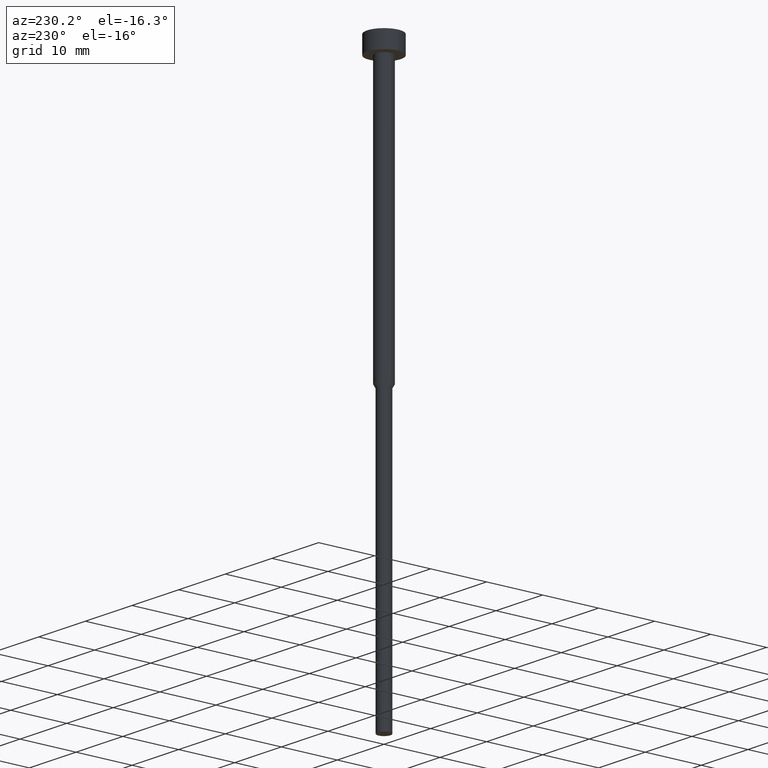
[diagram: clean part render]
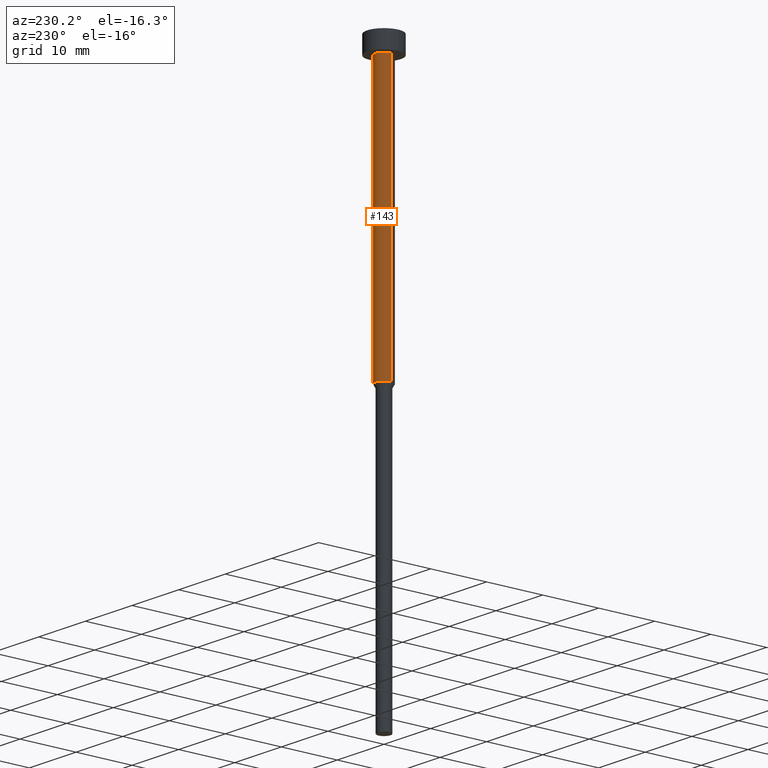
[diagram: same view with one face highlighted and labeled with its STEP entity id]
A machine part, auxiliary view. The second image highlights one B-rep face of the part: STEP entity #143.
In plain terms, the highlighted cylindrical surface (edge-blend (fillet) strip) has radius 1.5 mm, axis along (-0, -0, 1).
Its self-contained STEP definition (entity closure, byte-faithful):
#10 = AXIS2_PLACEMENT_3D ( 'NONE', #54, #140, #324 ) ;
#16 = DIRECTION ( 'NONE',  ( -0.000000000000000000, -0.000000000000000000, 1.000000000000000000 ) ) ;
#29 = CIRCLE ( 'NONE', #300, 1.500000000000000000 ) ;
#35 = VERTEX_POINT ( 'NONE', #238 ) ;
#36 = EDGE_CURVE ( 'NONE', #151, #281, #153, .T. ) ;
#41 = ORIENTED_EDGE ( 'NONE', *, *, #206, .T. ) ;
#54 = CARTESIAN_POINT ( 'NONE',  ( 0.000000000000000000, 0.000000000000000000, -50.00000000000000000 ) ) ;
#57 = AXIS2_PLACEMENT_3D ( 'NONE', #154, #16, #72 ) ;
#62 = ORIENTED_EDGE ( 'NONE', *, *, #36, .T. ) ;
#72 = DIRECTION ( 'NONE',  ( 1.000000000000000000, 0.000000000000000000, 0.000000000000000000 ) ) ;
#73 = CARTESIAN_POINT ( 'NONE',  ( 1.500000000000000000, 0.000000000000000000, -3.000000000000000888 ) ) ;
#74 = DIRECTION ( 'NONE',  ( 1.000000000000000000, 0.000000000000000000, 0.000000000000000000 ) ) ;
#92 = CARTESIAN_POINT ( 'NONE',  ( 1.500000000000000000, 0.000000000000000000, 0.000000000000000000 ) ) ;
#116 = DIRECTION ( 'NONE',  ( -0.000000000000000000, -0.000000000000000000, 1.000000000000000000 ) ) ;
#122 = CARTESIAN_POINT ( 'NONE',  ( 1.500000000000000000, 0.000000000000000000, -50.00000000000000000 ) ) ;
#138 = LINE ( 'NONE', #241, #252 ) ;
#140 = DIRECTION ( 'NONE',  ( -0.000000000000000000, -0.000000000000000000, 1.000000000000000000 ) ) ;
#143 = ADVANCED_FACE ( 'NONE', ( #348 ), #256, .T. ) ;
#151 = VERTEX_POINT ( 'NONE', #122 ) ;
#153 = CIRCLE ( 'NONE', #10, 1.500000000000000000 ) ;
#154 = CARTESIAN_POINT ( 'NONE',  ( 0.000000000000000000, 0.000000000000000000, 0.000000000000000000 ) ) ;
#171 = DIRECTION ( 'NONE',  ( -0.000000000000000000, -0.000000000000000000, 1.000000000000000000 ) ) ;
#180 = ORIENTED_EDGE ( 'NONE', *, *, #295, .F. ) ;
#192 = ORIENTED_EDGE ( 'NONE', *, *, #307, .F. ) ;
#206 = EDGE_CURVE ( 'NONE', #281, #35, #138, .T. ) ;
#209 = CARTESIAN_POINT ( 'NONE',  ( 0.000000000000000000, 0.000000000000000000, -3.000000000000000888 ) ) ;
#224 = EDGE_LOOP ( 'NONE', ( #62, #41, #180, #192 ) ) ;
#228 = VECTOR ( 'NONE', #171, 1000.000000000000000 ) ;
#233 = VERTEX_POINT ( 'NONE', #73 ) ;
#238 = CARTESIAN_POINT ( 'NONE',  ( -1.500000000000000000, 1.836970198721029934E-16, -3.000000000000000888 ) ) ;
#241 = CARTESIAN_POINT ( 'NONE',  ( -1.500000000000000000, 1.836970198721029934E-16, 0.000000000000000000 ) ) ;
#252 = VECTOR ( 'NONE', #116, 1000.000000000000000 ) ;
#256 = CYLINDRICAL_SURFACE ( 'NONE', #57, 1.500000000000000000 ) ;
#264 = CARTESIAN_POINT ( 'NONE',  ( -1.500000000000000000, 1.836970198721029934E-16, -50.00000000000000000 ) ) ;
#281 = VERTEX_POINT ( 'NONE', #264 ) ;
#295 = EDGE_CURVE ( 'NONE', #233, #35, #29, .T. ) ;
#300 = AXIS2_PLACEMENT_3D ( 'NONE', #209, #312, #74 ) ;
#307 = EDGE_CURVE ( 'NONE', #151, #233, #321, .T. ) ;
#312 = DIRECTION ( 'NONE',  ( -0.000000000000000000, -0.000000000000000000, 1.000000000000000000 ) ) ;
#321 = LINE ( 'NONE', #92, #228 ) ;
#324 = DIRECTION ( 'NONE',  ( 1.000000000000000000, 0.000000000000000000, 0.000000000000000000 ) ) ;
#348 = FACE_OUTER_BOUND ( 'NONE', #224, .T. ) ;